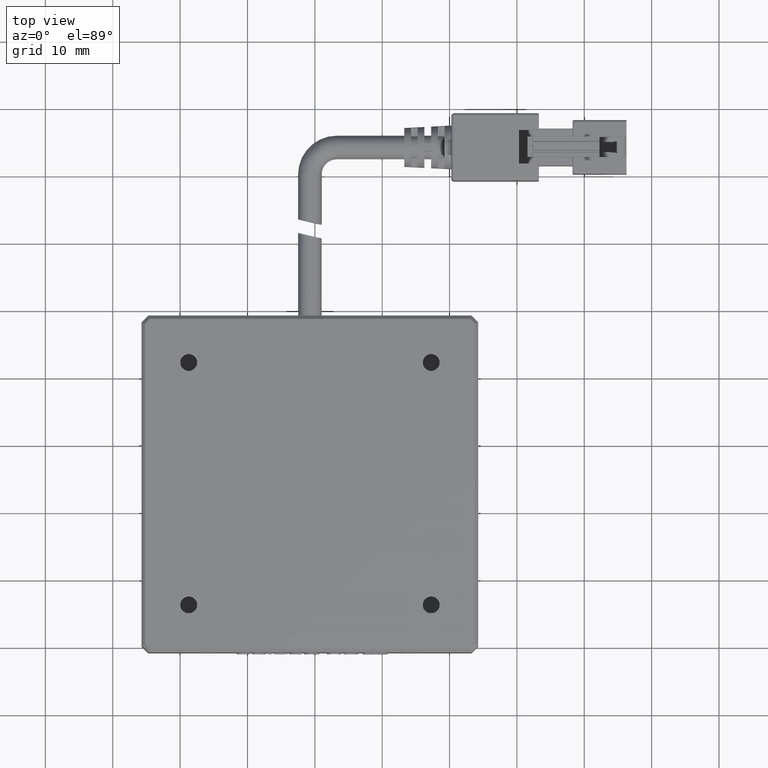
[diagram: clean part render]
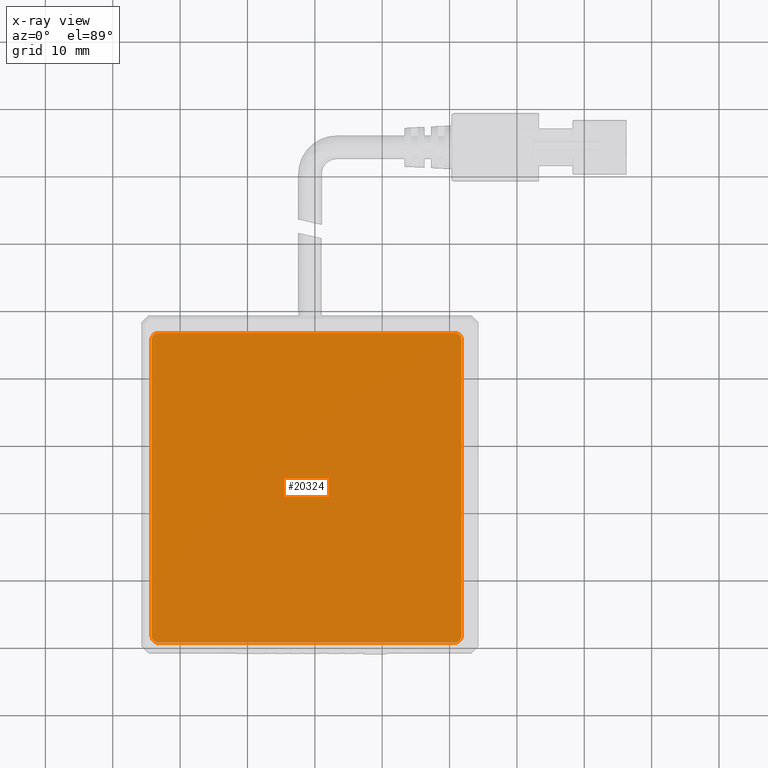
[diagram: x-ray — body ghosted, one internal face saturated and labeled with its STEP entity id]
A machine part, top view, then the same camera in x-ray: the body is ghosted and one INTERNAL B-rep face — a face not visible from any outside direction — is saturated and labeled: STEP entity #20324.
In plain terms, the highlighted planar face has unit normal (0, 0, -1).
Its self-contained STEP definition (entity closure, byte-faithful):
#649 = DIRECTION ( 'NONE',  ( -0.0000000000000000000, 0.0000000000000000000, 1.000000000000000000 ) ) ;
#2092 = EDGE_CURVE ( 'NONE', #6552, #24755, #9827, .T. ) ;
#2831 = CARTESIAN_POINT ( 'NONE',  ( 40.76702531645570800, -9.288860759493662300, -3.250000000000000900 ) ) ;
#3152 = LINE ( 'NONE', #16270, #19404 ) ;
#3462 = EDGE_LOOP ( 'NONE', ( #35785, #30168, #22832, #26462, #10133, #35906, #29259, #27070 ) ) ;
#4426 = EDGE_CURVE ( 'NONE', #21752, #27869, #37758, .T. ) ;
#4850 = VERTEX_POINT ( 'NONE', #37588 ) ;
#4947 = CARTESIAN_POINT ( 'NONE',  ( 40.76702531645570800, -8.288860759493660500, -3.250000000000000900 ) ) ;
#5756 = AXIS2_PLACEMENT_3D ( 'NONE', #30208, #10685, #33448 ) ;
#6499 = CARTESIAN_POINT ( 'NONE',  ( -3.232974683544290100, -9.288860759493662300, -3.250000000000000900 ) ) ;
#6552 = VERTEX_POINT ( 'NONE', #36928 ) ;
#6587 = AXIS2_PLACEMENT_3D ( 'NONE', #20111, #649, #23430 ) ;
#8208 = DIRECTION ( 'NONE',  ( -1.000000000000000000, 0.0000000000000000000, 0.0000000000000000000 ) ) ;
#8785 = DIRECTION ( 'NONE',  ( -0.0000000000000000000, 0.0000000000000000000, 1.000000000000000000 ) ) ;
#8796 = DIRECTION ( 'NONE',  ( 0.0000000000000000000, 0.0000000000000000000, -1.000000000000000000 ) ) ;
#9083 = CARTESIAN_POINT ( 'NONE',  ( -4.232974683544283900, 35.71113924050634100, -3.250000000000000900 ) ) ;
#9827 = CIRCLE ( 'NONE', #12635, 0.9999999999999974500 ) ;
#10001 = LINE ( 'NONE', #37997, #17609 ) ;
#10133 = ORIENTED_EDGE ( 'NONE', *, *, #15723, .F. ) ;
#10685 = DIRECTION ( 'NONE',  ( 0.0000000000000000000, -0.0000000000000000000, -1.000000000000000000 ) ) ;
#11186 = FACE_OUTER_BOUND ( 'NONE', #3462, .T. ) ;
#11833 = DIRECTION ( 'NONE',  ( -0.0000000000000000000, -1.000000000000000000, -0.0000000000000000000 ) ) ;
#12635 = AXIS2_PLACEMENT_3D ( 'NONE', #28297, #8785, #31526 ) ;
#12839 = VECTOR ( 'NONE', #13852, 1000.000000000000000 ) ;
#13229 = CARTESIAN_POINT ( 'NONE',  ( 41.76702531645570100, -8.288860759493660500, -3.250000000000000900 ) ) ;
#13292 = CIRCLE ( 'NONE', #40934, 1.000000000000000900 ) ;
#13432 = DIRECTION ( 'NONE',  ( -1.000000000000000000, 0.0000000000000000000, 0.0000000000000000000 ) ) ;
#13852 = DIRECTION ( 'NONE',  ( 1.000000000000000000, 0.0000000000000000000, 0.0000000000000000000 ) ) ;
#14666 = EDGE_CURVE ( 'NONE', #6552, #4850, #37114, .T. ) ;
#14872 = EDGE_CURVE ( 'NONE', #21752, #4850, #23694, .T. ) ;
#15723 = EDGE_CURVE ( 'NONE', #17549, #31890, #13292, .T. ) ;
#16270 = CARTESIAN_POINT ( 'NONE',  ( -3.232974683544290100, -9.288860759493662300, -3.250000000000000900 ) ) ;
#17549 = VERTEX_POINT ( 'NONE', #2831 ) ;
#17609 = VECTOR ( 'NONE', #11833, 1000.000000000000000 ) ;
#19404 = VECTOR ( 'NONE', #13432, 1000.000000000000000 ) ;
#20111 = CARTESIAN_POINT ( 'NONE',  ( -3.232974683544290100, 35.71113924050634100, -3.250000000000000900 ) ) ;
#20324 = ADVANCED_FACE ( 'NONE', ( #11186 ), #24889, .T. ) ;
#20658 = VERTEX_POINT ( 'NONE', #20679 ) ;
#20679 = CARTESIAN_POINT ( 'NONE',  ( 41.76702531645570100, 35.71113924050634100, -3.250000000000000900 ) ) ;
#21752 = VERTEX_POINT ( 'NONE', #37489 ) ;
#22832 = ORIENTED_EDGE ( 'NONE', *, *, #28461, .T. ) ;
#23430 = DIRECTION ( 'NONE',  ( -1.000000000000000000, 0.0000000000000000000, 0.0000000000000000000 ) ) ;
#23694 = CIRCLE ( 'NONE', #6587, 0.9999999999999974500 ) ;
#24755 = VERTEX_POINT ( 'NONE', #6499 ) ;
#24889 = PLANE ( 'NONE',  #39095 ) ;
#25457 = VECTOR ( 'NONE', #28589, 1000.000000000000000 ) ;
#26462 = ORIENTED_EDGE ( 'NONE', *, *, #39370, .T. ) ;
#27070 = ORIENTED_EDGE ( 'NONE', *, *, #14666, .T. ) ;
#27738 = DIRECTION ( 'NONE',  ( -0.0000000000000000000, 0.0000000000000000000, 1.000000000000000000 ) ) ;
#27869 = VERTEX_POINT ( 'NONE', #39588 ) ;
#28297 = CARTESIAN_POINT ( 'NONE',  ( -3.232974683544290100, -8.288860759493660500, -3.250000000000000900 ) ) ;
#28306 = CARTESIAN_POINT ( 'NONE',  ( 40.76702531645570800, 35.71113924050634100, -3.250000000000000900 ) ) ;
#28351 = EDGE_CURVE ( 'NONE', #17549, #24755, #3152, .T. ) ;
#28461 = EDGE_CURVE ( 'NONE', #27869, #20658, #28604, .T. ) ;
#28589 = DIRECTION ( 'NONE',  ( 0.0000000000000000000, 1.000000000000000000, 0.0000000000000000000 ) ) ;
#28604 = CIRCLE ( 'NONE', #5756, 1.000000000000000900 ) ;
#29259 = ORIENTED_EDGE ( 'NONE', *, *, #2092, .F. ) ;
#30168 = ORIENTED_EDGE ( 'NONE', *, *, #4426, .T. ) ;
#30208 = CARTESIAN_POINT ( 'NONE',  ( 40.76702531645570800, 35.71113924050634100, -3.250000000000000900 ) ) ;
#31526 = DIRECTION ( 'NONE',  ( -1.000000000000000000, 0.0000000000000000000, 0.0000000000000000000 ) ) ;
#31536 = DIRECTION ( 'NONE',  ( -1.000000000000000000, 0.0000000000000000000, 0.0000000000000000000 ) ) ;
#31890 = VERTEX_POINT ( 'NONE', #13229 ) ;
#33320 = CARTESIAN_POINT ( 'NONE',  ( -3.232974683544290100, 36.71113924050634100, -3.250000000000000900 ) ) ;
#33448 = DIRECTION ( 'NONE',  ( -1.000000000000000000, 0.0000000000000000000, 0.0000000000000000000 ) ) ;
#35785 = ORIENTED_EDGE ( 'NONE', *, *, #14872, .F. ) ;
#35906 = ORIENTED_EDGE ( 'NONE', *, *, #28351, .T. ) ;
#36928 = CARTESIAN_POINT ( 'NONE',  ( -4.232974683544283900, -8.288860759493660500, -3.250000000000000900 ) ) ;
#37114 = LINE ( 'NONE', #9083, #25457 ) ;
#37489 = CARTESIAN_POINT ( 'NONE',  ( -3.232974683544290100, 36.71113924050634100, -3.250000000000000900 ) ) ;
#37588 = CARTESIAN_POINT ( 'NONE',  ( -4.232974683544283900, 35.71113924050634100, -3.250000000000000900 ) ) ;
#37758 = LINE ( 'NONE', #33320, #12839 ) ;
#37997 = CARTESIAN_POINT ( 'NONE',  ( 41.76702531645570100, 35.71113924050634100, -3.250000000000000900 ) ) ;
#39095 = AXIS2_PLACEMENT_3D ( 'NONE', #28306, #8796, #31536 ) ;
#39370 = EDGE_CURVE ( 'NONE', #20658, #31890, #10001, .T. ) ;
#39588 = CARTESIAN_POINT ( 'NONE',  ( 40.76702531645570800, 36.71113924050634100, -3.250000000000000900 ) ) ;
#40934 = AXIS2_PLACEMENT_3D ( 'NONE', #4947, #27738, #8208 ) ;